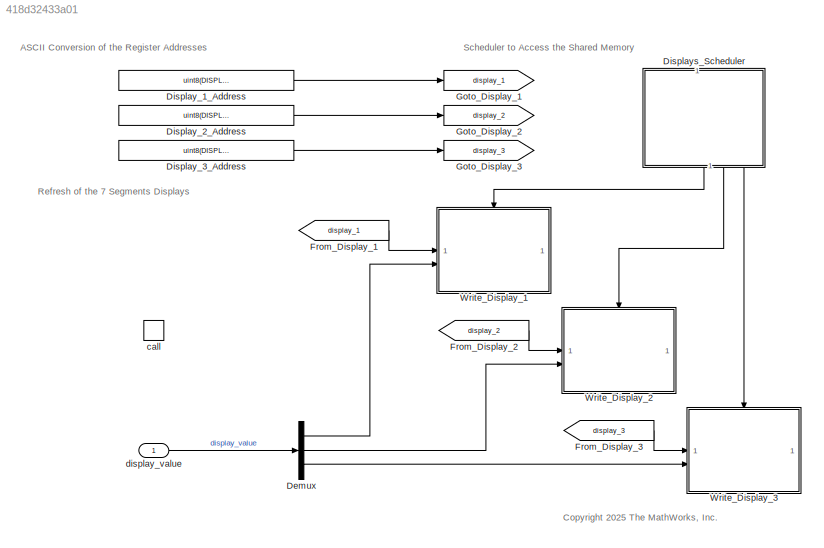
MODEL slx_418d32433a01
KIND model
CONFIG AbsTol = auto
CONFIG EnableMultiTasking = off
CONFIG FixedStep = auto
CONFIG MaxStep = auto
CONFIG MinStep = auto
CONFIG RelTol = 1e-3
CONFIG SampleTimeConstraint = STIndependent
CONFIG SolverName = FixedStepAuto
CONFIG StartTime = 0.0
CONFIG StopTime = Inf
BLOCK [Demux] Demux
  Outputs = 3
BLOCK [Constant] Display_1_Address
  SampleTime = -1
  Value = uint8(DISPLAY_REGISTER_1)
BLOCK [Constant] Display_2_Address
  SampleTime = -1
  Value = uint8(DISPLAY_REGISTER_2)
BLOCK [Constant] Display_3_Address
  SampleTime = -1
  Value = uint8(DISPLAY_REGISTER_3)
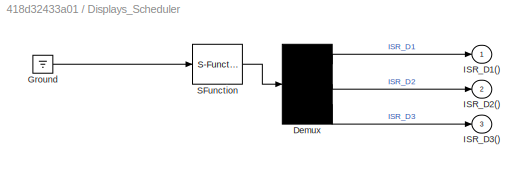
BLOCK [SubSystem] Displays_Scheduler
  ErrorFcn = Stateflow.Translate.translate
  NameLocation = left
  PermitHierarchicalResolution = ExplicitOnly
  SFBlockType = Chart
  TreatAsAtomicUnit = on
BLOCK [Demux] Displays_Scheduler/ Demux 
  Outputs = 3
BLOCK [Ground] Displays_Scheduler/ Ground 
BLOCK [S-Function] Displays_Scheduler/ SFunction 
  EnableBusSupport = on
  FunctionName = sf_sfun
  PortCounts = [1 1]
  SFcnIsStateOwnerBlock = off
  SFunctionDeploymentMode = off
  Tag = Stateflow S-Function 1
BLOCK [Outport] Displays_Scheduler/ISR_D1()
  VectorParamsAs1DForOutWhenUnconnected = off
BLOCK [Outport] Displays_Scheduler/ISR_D2()
  Port = 2
  VectorParamsAs1DForOutWhenUnconnected = off
BLOCK [Outport] Displays_Scheduler/ISR_D3()
  Port = 3
  VectorParamsAs1DForOutWhenUnconnected = off
BLOCK [From] From_Display_1
  GotoTag = display_1
BLOCK [From] From_Display_2
  GotoTag = display_2
BLOCK [From] From_Display_3
  GotoTag = display_3
BLOCK [Goto] Goto_Display_1
  GotoTag = display_1
BLOCK [Goto] Goto_Display_2
  GotoTag = display_2
BLOCK [Goto] Goto_Display_3
  GotoTag = display_3
BLOCK [ModelReference] Write_Display_1
  ModelNameDialog = WriteRegisterTriggered
  ModelReferenceVersion = 11.4
  TriggerPortName = trigger
  TriggerPortStatesWhenEnabling = held
  TriggerPortTriggerType = function-call
BLOCK [ModelReference] Write_Display_2
  ModelNameDialog = WriteRegisterTriggered
  ModelReferenceVersion = 11.4
  TriggerPortName = trigger
  TriggerPortStatesWhenEnabling = held
  TriggerPortTriggerType = function-call
BLOCK [ModelReference] Write_Display_3
  ModelNameDialog = WriteRegisterTriggered
  ModelReferenceVersion = 11.4
  TriggerPortName = trigger
  TriggerPortStatesWhenEnabling = held
  TriggerPortTriggerType = function-call
BLOCK [TriggerPort] call
  PortDimensions = 1
  SampleTime = -1
  StatesWhenEnabling = held
  TriggerSignalSampleTime = [0.001,0]
  TriggerType = function-call
  VariantControl = Variant
BLOCK [Inport] display_value
  OutDataTypeStr = uint8
  PortDimensions = [1 3]
  SamplingMode = Sample based
  SignalType = real
ANNOTATION (root): ASCII Conversion of the Register Addresses
ANNOTATION (root): <copyright redacted>
ANNOTATION (root): Refresh of the 7 Segments Displays
ANNOTATION (root): Scheduler to Access the Shared Memory
LINE Demux:1 -> Write_Display_1:2
LINE Demux:2 -> Write_Display_2:2
LINE Demux:3 -> Write_Display_3:2
LINE Display_1_Address:1 -> Goto_Display_1:1
LINE Display_2_Address:1 -> Goto_Display_2:1
LINE Display_3_Address:1 -> Goto_Display_3:1
LINE Displays_Scheduler:1 -> Write_Display_1:trigger
LINE Displays_Scheduler:2 -> Write_Display_2:trigger
LINE Displays_Scheduler:3 -> Write_Display_3:trigger
LINE From_Display_1:1 -> Write_Display_1:1
LINE From_Display_2:1 -> Write_Display_2:1
LINE From_Display_3:1 -> Write_Display_3:1
LINE display_value:1 -> Demux:1
CHART Displays_Scheduler states=3 transitions=6
  STATE_LABEL 'Update_DISP1\nentry: % Refresh the status of the first digits display\n send(ISR_D1);'
  STATE_LABEL 'Update_DISP2\nentry: % Refresh the status of the second digits display\n send(ISR_D2);'
  STATE_LABEL 'Update_DISP3\nentry: % Refresh the status of the third digits display\n send(ISR_D3);'
CHART  states=0 transitions=0
